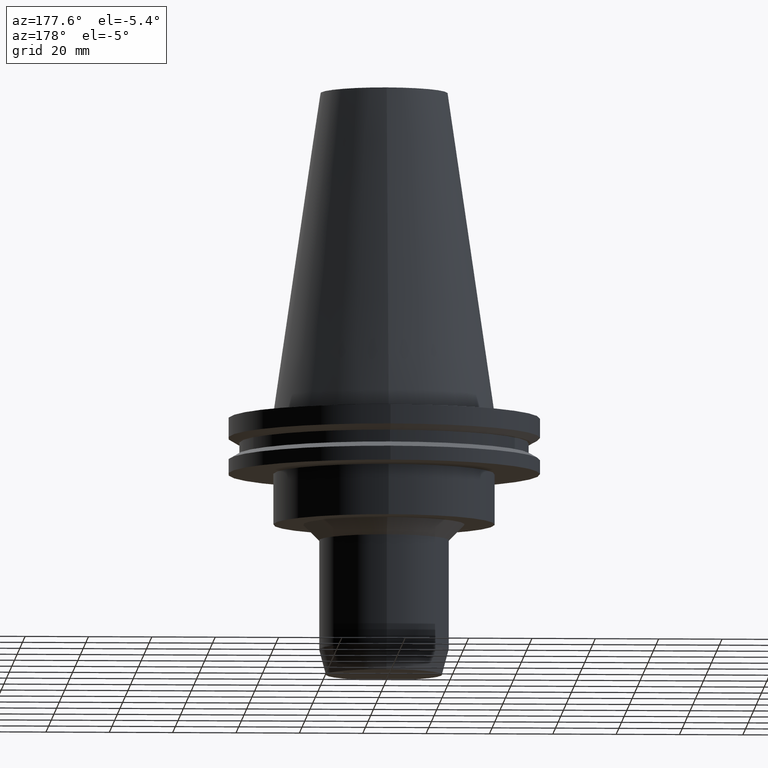
[diagram: clean part render]
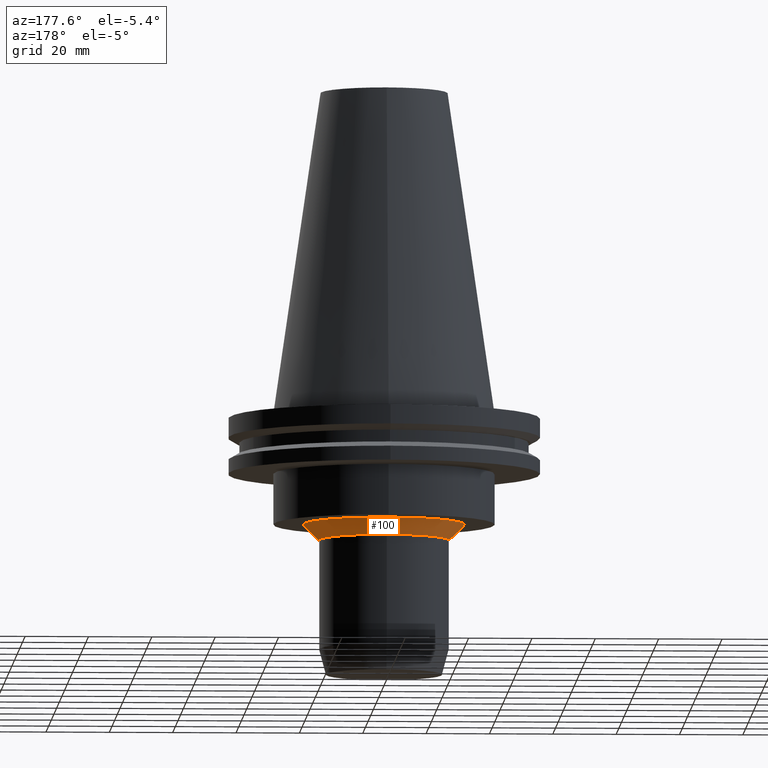
[diagram: same view with one face highlighted and labeled with its STEP entity id]
A machine part, auxiliary view. The second image highlights one B-rep face of the part: STEP entity #100.
In plain terms, the highlighted conical surface has half-angle 45 deg.
Its self-contained STEP definition (entity closure, byte-faithful):
#100=ADVANCED_FACE('Unnamed[1]',(#228,#229),#230,.T.);
#125=EDGE_CURVE('Unnamed[1]',#267,#267,#268,.T.);
#130=EDGE_CURVE('Unnamed[1]',#275,#275,#276,.T.);
#228=FACE_BOUND('',#393,.T.);
#229=FACE_BOUND('',#394,.T.);
#230=CONICAL_SURFACE('',#395,22.9999999999992,0.785398163397405);
#267=VERTEX_POINT('',#441);
#268=CIRCLE('',#442,25.4999999999991);
#275=VERTEX_POINT('',#451);
#276=CIRCLE('',#452,20.4999999999992);
#393=EDGE_LOOP('',(#560));
#394=EDGE_LOOP('',(#561));
#395=AXIS2_PLACEMENT_3D('',#562,#563,#564);
#441=CARTESIAN_POINT('',(2.14313189850789E-015,25.4999999999991,-35.0000000000003));
#442=AXIS2_PLACEMENT_3D('',#602,#603,#604);
#451=CARTESIAN_POINT('',(2.44929359829474E-015,20.4999999999993,-40.0000000000006));
#452=AXIS2_PLACEMENT_3D('',#611,#612,#613);
#560=ORIENTED_EDGE('',*,*,#130,.F.);
#561=ORIENTED_EDGE('',*,*,#125,.T.);
#562=CARTESIAN_POINT('',(2.29621274840132E-015,3.3492540990789E-014,-37.5000000000005));
#563=DIRECTION('',(-6.12323399573677E-017,-7.22462196173099E-016,1.0));
#564=DIRECTION('',(-4.9065203533189E-032,1.0,7.22462196173099E-016));
#602=CARTESIAN_POINT('',(2.14313189850789E-015,3.16863855003561E-014,-35.0000000000003));
#603=DIRECTION('',(6.12323399573677E-017,7.22462196173044E-016,-1.0));
#604=DIRECTION('',(-4.90652035331799E-032,1.0,7.22462196173044E-016));
#611=CARTESIAN_POINT('',(2.44929359829474E-015,3.52986964812218E-014,-40.0000000000006));
#612=DIRECTION('',(6.12323399573677E-017,7.2246219617309E-016,-1.0));
#613=DIRECTION('',(-4.90652035331871E-032,1.0,7.2246219617309E-016));